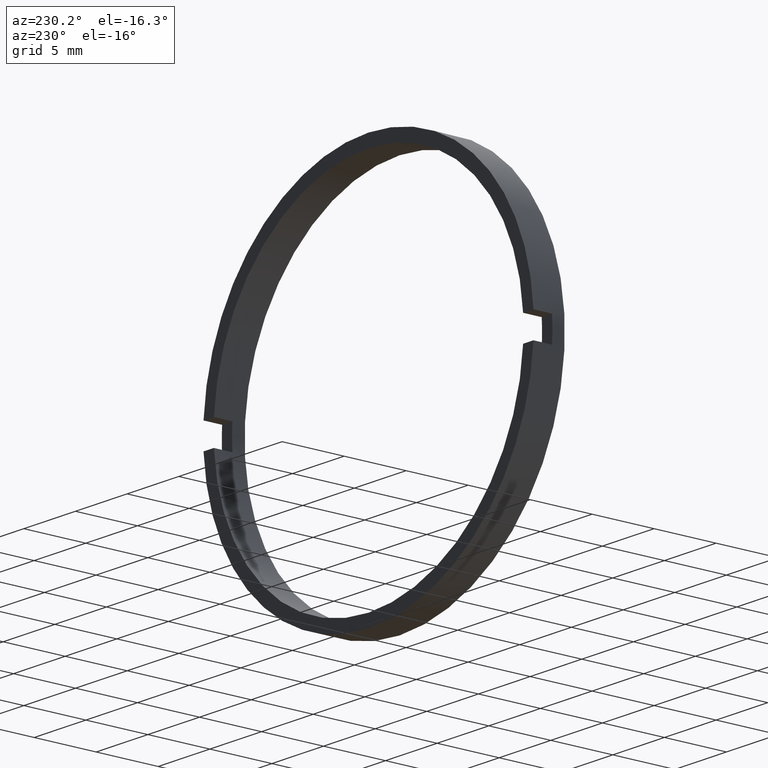
[diagram: clean part render]
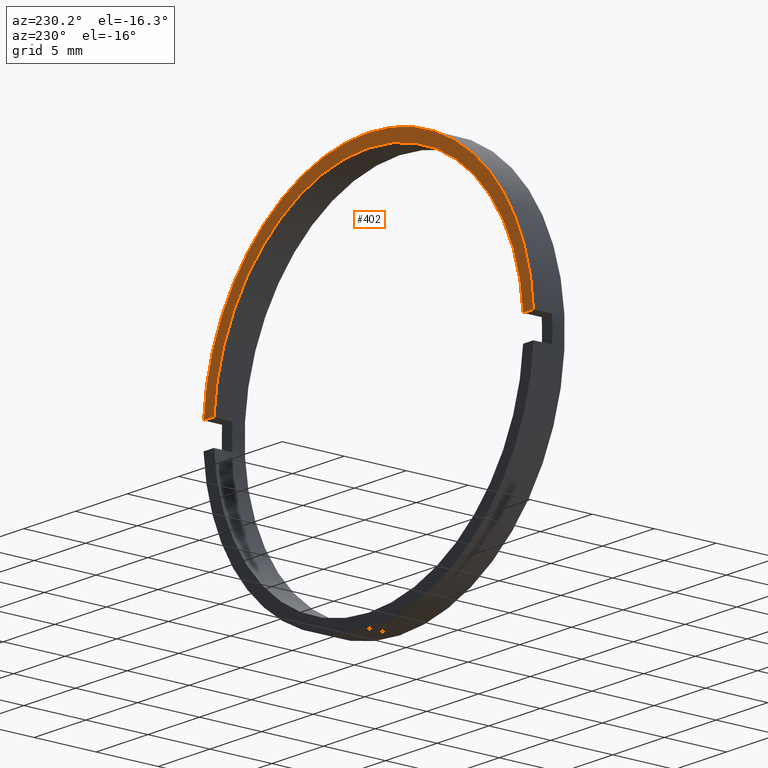
[diagram: same view with one face highlighted and labeled with its STEP entity id]
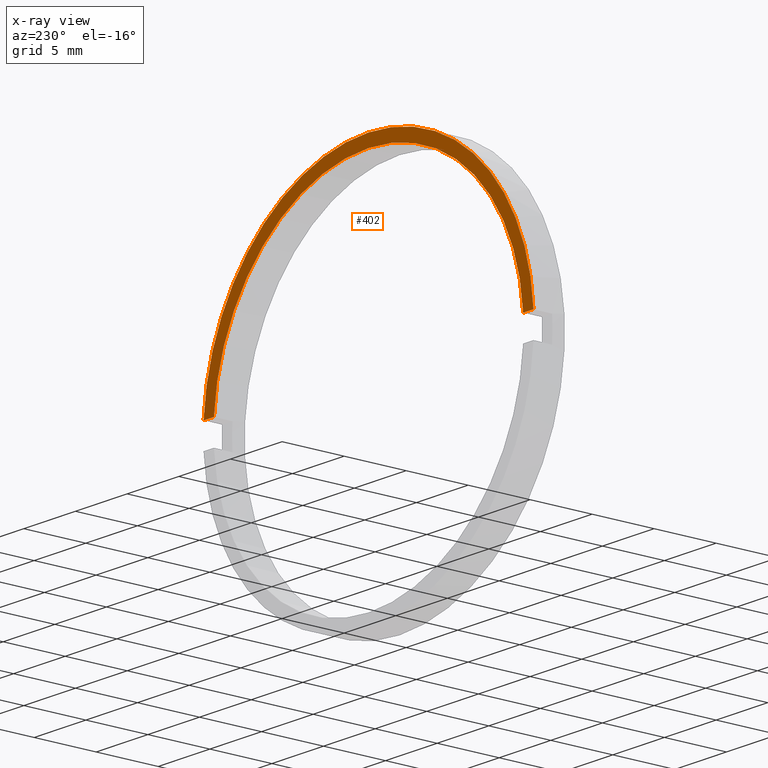
[diagram: x-ray of the same camera — body ghosted, the highlighted face saturated]
A machine part, auxiliary view. The second image highlights one B-rep face of the part: STEP entity #402.
The next image is the same camera in x-ray: the body ghosted, the highlighted face saturated — about 0% of this face is hidden behind the body in this view.
In plain terms, the highlighted planar face has unit normal (0, -1, 0).
Its self-contained STEP definition (entity closure, byte-faithful):
#10 = EDGE_CURVE ( 'NONE', #423, #368, #310, .T. ) ;
#15 = EDGE_CURVE ( 'NONE', #410, #131, #97, .T. ) ;
#24 = ORIENTED_EDGE ( 'NONE', *, *, #34, .T. ) ;
#26 = VECTOR ( 'NONE', #109, 1000.000000000000000 ) ;
#34 = EDGE_CURVE ( 'NONE', #235, #410, #284, .T. ) ;
#41 = EDGE_LOOP ( 'NONE', ( #24, #328, #229, #163, #490, #201 ) ) ;
#53 = DIRECTION ( 'NONE',  ( -0.0000000000000000000, 1.000000000000000000, -0.0000000000000000000 ) ) ;
#61 = AXIS2_PLACEMENT_3D ( 'NONE', #437, #485, #307 ) ;
#94 = CARTESIAN_POINT ( 'NONE',  ( 0.0000000000000000000, -1.964249787179434000, 0.0000000000000000000 ) ) ;
#97 = CIRCLE ( 'NONE', #61, 16.00000000000000700 ) ;
#109 = DIRECTION ( 'NONE',  ( 1.000000000000000000, 0.0000000000000000000, 0.0000000000000000000 ) ) ;
#126 = FACE_OUTER_BOUND ( 'NONE', #41, .T. ) ;
#131 = VERTEX_POINT ( 'NONE', #409 ) ;
#143 = CARTESIAN_POINT ( 'NONE',  ( 0.0000000000000000000, -1.964249787179434000, 0.0000000000000000000 ) ) ;
#148 = CARTESIAN_POINT ( 'NONE',  ( -15.96871942267132400, -1.964249787179430900, 1.000000000000000000 ) ) ;
#156 = DIRECTION ( 'NONE',  ( 0.0000000000000000000, -0.0000000000000000000, -1.000000000000000000 ) ) ;
#158 = CARTESIAN_POINT ( 'NONE',  ( 15.00000000000000700, -1.964249787179430900, 0.0000000000000000000 ) ) ;
#163 = ORIENTED_EDGE ( 'NONE', *, *, #10, .F. ) ;
#171 = CARTESIAN_POINT ( 'NONE',  ( -26.85254027261461800, -1.964249787179430900, 1.000000000000000000 ) ) ;
#182 = AXIS2_PLACEMENT_3D ( 'NONE', #143, #453, #420 ) ;
#188 = EDGE_CURVE ( 'NONE', #368, #131, #246, .T. ) ;
#190 = DIRECTION ( 'NONE',  ( 0.0000000000000000000, -1.000000000000000000, 0.0000000000000000000 ) ) ;
#201 = ORIENTED_EDGE ( 'NONE', *, *, #234, .F. ) ;
#222 = CARTESIAN_POINT ( 'NONE',  ( -26.85254027261461800, -1.964249787179430900, 1.000000000000000000 ) ) ;
#229 = ORIENTED_EDGE ( 'NONE', *, *, #188, .F. ) ;
#234 = EDGE_CURVE ( 'NONE', #235, #412, #482, .T. ) ;
#235 = VERTEX_POINT ( 'NONE', #148 ) ;
#236 = VECTOR ( 'NONE', #250, 1000.000000000000000 ) ;
#238 = DIRECTION ( 'NONE',  ( 0.0000000000000000000, 0.0000000000000000000, 1.000000000000000000 ) ) ;
#246 = LINE ( 'NONE', #171, #26 ) ;
#250 = DIRECTION ( 'NONE',  ( 1.000000000000000000, 0.0000000000000000000, 0.0000000000000000000 ) ) ;
#265 = EDGE_CURVE ( 'NONE', #412, #423, #325, .T. ) ;
#282 = AXIS2_PLACEMENT_3D ( 'NONE', #483, #53, #361 ) ;
#284 = CIRCLE ( 'NONE', #282, 16.00000000000000700 ) ;
#307 = DIRECTION ( 'NONE',  ( 0.0000000000000000000, 0.0000000000000000000, 1.000000000000000000 ) ) ;
#310 = CIRCLE ( 'NONE', #460, 15.00000000000000700 ) ;
#325 = CIRCLE ( 'NONE', #182, 15.00000000000000700 ) ;
#328 = ORIENTED_EDGE ( 'NONE', *, *, #15, .T. ) ;
#335 = CARTESIAN_POINT ( 'NONE',  ( 14.96662954709577100, -1.964249787179434000, 0.9999999999999995600 ) ) ;
#361 = DIRECTION ( 'NONE',  ( 0.0000000000000000000, 0.0000000000000000000, 1.000000000000000000 ) ) ;
#368 = VERTEX_POINT ( 'NONE', #335 ) ;
#396 = CARTESIAN_POINT ( 'NONE',  ( 0.0000000000000000000, -1.964249787179434000, 15.00000000000000700 ) ) ;
#402 = ADVANCED_FACE ( 'NONE', ( #126 ), #429, .F. ) ;
#409 = CARTESIAN_POINT ( 'NONE',  ( 15.96871942267130600, -1.964249787179430900, 1.000000000000000000 ) ) ;
#410 = VERTEX_POINT ( 'NONE', #428 ) ;
#412 = VERTEX_POINT ( 'NONE', #430 ) ;
#419 = AXIS2_PLACEMENT_3D ( 'NONE', #158, #190, #156 ) ;
#420 = DIRECTION ( 'NONE',  ( 0.0000000000000000000, 0.0000000000000000000, 1.000000000000000000 ) ) ;
#423 = VERTEX_POINT ( 'NONE', #396 ) ;
#428 = CARTESIAN_POINT ( 'NONE',  ( 0.0000000000000000000, -1.964249787179434000, 16.00000000000000700 ) ) ;
#429 = PLANE ( 'NONE',  #419 ) ;
#430 = CARTESIAN_POINT ( 'NONE',  ( -14.96662954709577100, -1.964249787179434000, 0.9999999999999995600 ) ) ;
#437 = CARTESIAN_POINT ( 'NONE',  ( 0.0000000000000000000, -1.964249787179434000, 0.0000000000000000000 ) ) ;
#453 = DIRECTION ( 'NONE',  ( -0.0000000000000000000, 1.000000000000000000, -0.0000000000000000000 ) ) ;
#460 = AXIS2_PLACEMENT_3D ( 'NONE', #94, #486, #238 ) ;
#482 = LINE ( 'NONE', #222, #236 ) ;
#483 = CARTESIAN_POINT ( 'NONE',  ( 0.0000000000000000000, -1.964249787179434000, 0.0000000000000000000 ) ) ;
#485 = DIRECTION ( 'NONE',  ( -0.0000000000000000000, 1.000000000000000000, -0.0000000000000000000 ) ) ;
#486 = DIRECTION ( 'NONE',  ( -0.0000000000000000000, 1.000000000000000000, -0.0000000000000000000 ) ) ;
#490 = ORIENTED_EDGE ( 'NONE', *, *, #265, .F. ) ;